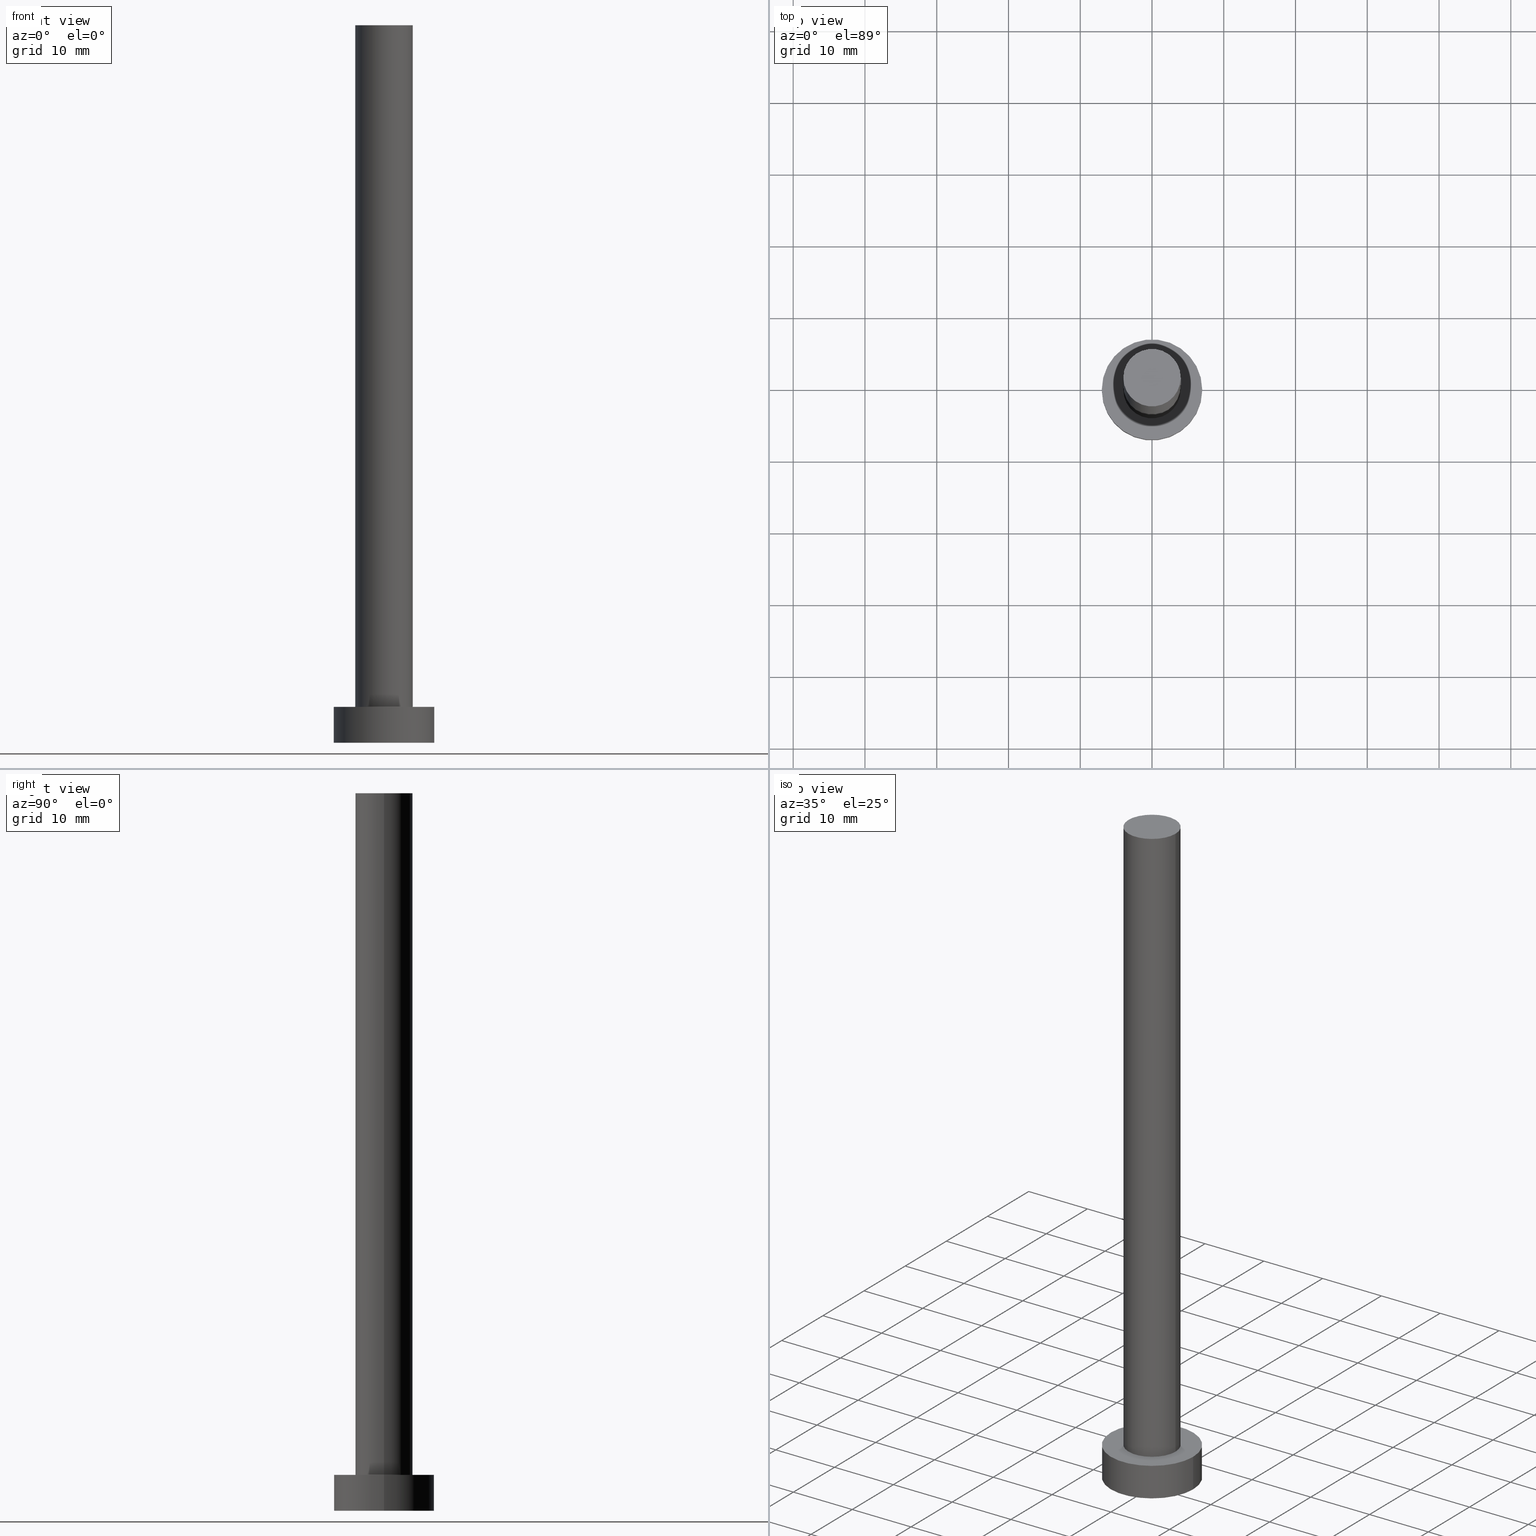
[diagram: canonical four-view strip — front | top / right | iso, engineering-drawing reading convention]
A machine part, canonical four-view strip (front | top / right | iso — engineering-drawing reading convention). The complete STEP part file that produces these views, byte-faithful:
ISO-10303-21;
HEADER;
FILE_DESCRIPTION (( 'STEP AP203' ),
    '1' );
FILE_NAME ('0e49.STEP',
    '2023-02-12T11:20:41',
    ( '' ),
    ( '' ),
    'SwSTEP 2.0',
    'SolidWorks 2019',
    '' );
FILE_SCHEMA (( 'CONFIG_CONTROL_DESIGN' ));
ENDSEC;

DATA;
#1 = PERSON_AND_ORGANIZATION_ROLE ( 'design_supplier' ) ;
#2 = FACE_OUTER_BOUND ( 'NONE', #112, .T. ) ;
#3 = CARTESIAN_POINT ( 'NONE',  ( 0.000000000000000000, 0.000000000000000000, 5.000000000000000000 ) ) ;
#4 = PERSON_AND_ORGANIZATION ( #158, #207 ) ;
#5 = APPLICATION_CONTEXT ( 'configuration controlled 3d designs of mechanical parts and assemblies' ) ;
#6 = APPROVAL_PERSON_ORGANIZATION ( #241, #59, #16 ) ;
#7 =( LENGTH_UNIT ( ) NAMED_UNIT ( * ) SI_UNIT ( .MILLI., .METRE. ) );
#8 = AXIS2_PLACEMENT_3D ( 'NONE', #123, #102, #120 ) ;
#9 = CC_DESIGN_PERSON_AND_ORGANIZATION_ASSIGNMENT ( #182, #1, ( #113 ) ) ;
#10 = DATE_AND_TIME ( #194, #188 ) ;
#11 = EDGE_CURVE ( 'NONE', #52, #242, #56, .T. ) ;
#12 = CC_DESIGN_DATE_AND_TIME_ASSIGNMENT ( #72, #86, ( #32 ) ) ;
#13 = ORIENTED_EDGE ( 'NONE', *, *, #103, .T. ) ;
#14 = AXIS2_PLACEMENT_3D ( 'NONE', #203, #159, #216 ) ;
#15 = DIRECTION ( 'NONE',  ( -0.000000000000000000, -0.000000000000000000, -1.000000000000000000 ) ) ;
#16 = APPROVAL_ROLE ( '' ) ;
#17 = DIRECTION ( 'NONE',  ( -0.000000000000000000, -0.000000000000000000, -1.000000000000000000 ) ) ;
#18 = CC_DESIGN_PERSON_AND_ORGANIZATION_ASSIGNMENT ( #4, #218, ( #23 ) ) ;
#19 = CALENDAR_DATE ( 2023, 12, 2 ) ;
#20 = CARTESIAN_POINT ( 'NONE',  ( 0.000000000000000000, 0.000000000000000000, 5.000000000000000000 ) ) ;
#21 = DIRECTION ( 'NONE',  ( -0.000000000000000000, -0.000000000000000000, -1.000000000000000000 ) ) ;
#22 = APPROVAL_STATUS ( 'not_yet_approved' ) ;
#23 = PRODUCT_DEFINITION ( 'NEZN�M�', '', #113, #36 ) ;
#24 = CIRCLE ( 'NONE', #251, 7.000000000000000000 ) ;
#25 = CARTESIAN_POINT ( 'NONE',  ( 0.000000000000000000, 0.000000000000000000, 0.000000000000000000 ) ) ;
#26 = FACE_OUTER_BOUND ( 'NONE', #98, .T. ) ;
#27 = VECTOR ( 'NONE', #118, 1000.000000000000000 ) ;
#28 = DIRECTION ( 'NONE',  ( 1.000000000000000000, 0.000000000000000000, 0.000000000000000000 ) ) ;
#29 = ORIENTED_EDGE ( 'NONE', *, *, #30, .T. ) ;
#30 = EDGE_CURVE ( 'NONE', #242, #76, #166, .T. ) ;
#31 = ORIENTED_EDGE ( 'NONE', *, *, #244, .T. ) ;
#32 = SECURITY_CLASSIFICATION ( '', '', #156 ) ;
#33 = ORIENTED_EDGE ( 'NONE', *, *, #11, .F. ) ;
#34 = CC_DESIGN_PERSON_AND_ORGANIZATION_ASSIGNMENT ( #60, #104, ( #113 ) ) ;
#35 = ORIENTED_EDGE ( 'NONE', *, *, #161, .F. ) ;
#36 = DESIGN_CONTEXT ( 'detailed design', #5, 'design' ) ;
#37 = LOCAL_TIME ( 12, 20, 41.00000000000000000, #222 ) ;
#38 = DIRECTION ( 'NONE',  ( 0.000000000000000000, 0.000000000000000000, 1.000000000000000000 ) ) ;
#39 = CALENDAR_DATE ( 2023, 12, 2 ) ;
#40 = CARTESIAN_POINT ( 'NONE',  ( 0.000000000000000000, 0.000000000000000000, 100.0000000000000000 ) ) ;
#41 = EDGE_CURVE ( 'NONE', #173, #76, #255, .T. ) ;
#42 = APPLICATION_PROTOCOL_DEFINITION ( 'international standard', 'config_control_design', 1994, #233 ) ;
#43 = AXIS2_PLACEMENT_3D ( 'NONE', #68, #225, #47 ) ;
#44 = AXIS2_PLACEMENT_3D ( 'NONE', #3, #67, #140 ) ;
#45 = MECHANICAL_CONTEXT ( 'NONE', #233, 'mechanical' ) ;
#46 = CARTESIAN_POINT ( 'NONE',  ( 4.000000000000000000, 4.898587196589412829E-16, 5.000000000000000000 ) ) ;
#47 = DIRECTION ( 'NONE',  ( 1.000000000000000000, 0.000000000000000000, 0.000000000000000000 ) ) ;
#48 =( NAMED_UNIT ( * ) SI_UNIT ( $, .STERADIAN. ) SOLID_ANGLE_UNIT ( ) );
#49 = CALENDAR_DATE ( 2023, 12, 2 ) ;
#50 = DIRECTION ( 'NONE',  ( 1.000000000000000000, 0.000000000000000000, -0.000000000000000000 ) ) ;
#51 = ORIENTED_EDGE ( 'NONE', *, *, #84, .T. ) ;
#52 = VERTEX_POINT ( 'NONE', #141 ) ;
#53 = EDGE_CURVE ( 'NONE', #232, #150, #186, .T. ) ;
#54 = ORIENTED_EDGE ( 'NONE', *, *, #84, .F. ) ;
#55 = DIRECTION ( 'NONE',  ( -1.000000000000000000, 0.000000000000000000, 0.000000000000000000 ) ) ;
#56 = LINE ( 'NONE', #237, #27 ) ;
#57 = CLOSED_SHELL ( 'NONE', ( #171, #127, #65, #108, #215, #191, #131 ) ) ;
#58 = CYLINDRICAL_SURFACE ( 'NONE', #167, 4.000000000000000000 ) ;
#59 = APPROVAL ( #69, 'NEUR�EN�' ) ;
#60 = PERSON_AND_ORGANIZATION ( #158, #207 ) ;
#61 = CARTESIAN_POINT ( 'NONE',  ( 0.000000000000000000, 0.000000000000000000, 5.000000000000000000 ) ) ;
#62 = PERSON_AND_ORGANIZATION_ROLE ( 'classification_officer' ) ;
#63 = DIRECTION ( 'NONE',  ( 1.000000000000000000, 0.000000000000000000, -0.000000000000000000 ) ) ;
#64 = CARTESIAN_POINT ( 'NONE',  ( -7.000000000000000000, 0.000000000000000000, 5.000000000000000000 ) ) ;
#65 = ADVANCED_FACE ( 'NONE', ( #125 ), #122, .T. ) ;
#66 = PERSON_AND_ORGANIZATION ( #158, #207 ) ;
#67 = DIRECTION ( 'NONE',  ( 0.000000000000000000, 0.000000000000000000, 1.000000000000000000 ) ) ;
#68 = CARTESIAN_POINT ( 'NONE',  ( 0.000000000000000000, 0.000000000000000000, 100.0000000000000000 ) ) ;
#69 = APPROVAL_STATUS ( 'not_yet_approved' ) ;
#70 = DIRECTION ( 'NONE',  ( 0.000000000000000000, 0.000000000000000000, 1.000000000000000000 ) ) ;
#71 = AXIS2_PLACEMENT_3D ( 'NONE', #147, #70, #50 ) ;
#72 = DATE_AND_TIME ( #49, #37 ) ;
#73 = ORIENTED_EDGE ( 'NONE', *, *, #161, .T. ) ;
#74 = EDGE_CURVE ( 'NONE', #232, #213, #199, .T. ) ;
#75 = EDGE_LOOP ( 'NONE', ( #51, #172 ) ) ;
#76 = VERTEX_POINT ( 'NONE', #110 ) ;
#77 = EDGE_LOOP ( 'NONE', ( #152, #54, #73, #198 ) ) ;
#78 = AXIS2_PLACEMENT_3D ( 'NONE', #20, #106, #184 ) ;
#79 = ORIENTED_EDGE ( 'NONE', *, *, #41, .F. ) ;
#80 = FACE_OUTER_BOUND ( 'NONE', #149, .T. ) ;
#81 = CIRCLE ( 'NONE', #249, 7.000000000000000000 ) ;
#82 = APPROVAL_DATE_TIME ( #254, #59 ) ;
#83 = CYLINDRICAL_SURFACE ( 'NONE', #93, 7.000000000000000000 ) ;
#84 = EDGE_CURVE ( 'NONE', #213, #232, #230, .T. ) ;
#85 = ORIENTED_EDGE ( 'NONE', *, *, #151, .F. ) ;
#86 = DATE_TIME_ROLE ( 'classification_date' ) ;
#87 = PLANE ( 'NONE',  #71 ) ;
#88 = AXIS2_PLACEMENT_3D ( 'NONE', #153, #97, #55 ) ;
#89 = DIRECTION ( 'NONE',  ( 1.000000000000000000, 0.000000000000000000, 0.000000000000000000 ) ) ;
#90 = APPROVAL_DATE_TIME ( #10, #229 ) ;
#91 = EDGE_LOOP ( 'NONE', ( #211, #250, #13, #35 ) ) ;
#92 = PRODUCT ( '0e49', '0e49', '', ( #45 ) ) ;
#93 = AXIS2_PLACEMENT_3D ( 'NONE', #179, #185, #137 ) ;
#94 = CC_DESIGN_APPROVAL ( #155, ( #23 ) ) ;
#95 = ORIENTED_EDGE ( 'NONE', *, *, #103, .F. ) ;
#96 = EDGE_CURVE ( 'NONE', #115, #150, #221, .T. ) ;
#97 = DIRECTION ( 'NONE',  ( -0.000000000000000000, -0.000000000000000000, -1.000000000000000000 ) ) ;
#98 = EDGE_LOOP ( 'NONE', ( #212, #132 ) ) ;
#99 = PLANE ( 'NONE',  #134 ) ;
#100 = APPROVAL_ROLE ( '' ) ;
#101 = DIRECTION ( 'NONE',  ( 1.000000000000000000, 0.000000000000000000, 0.000000000000000000 ) ) ;
#102 = DIRECTION ( 'NONE',  ( 0.000000000000000000, 0.000000000000000000, 1.000000000000000000 ) ) ;
#103 = EDGE_CURVE ( 'NONE', #150, #115, #117, .T. ) ;
#104 = PERSON_AND_ORGANIZATION_ROLE ( 'creator' ) ;
#105 = DIRECTION ( 'NONE',  ( 0.000000000000000000, 0.000000000000000000, 1.000000000000000000 ) ) ;
#106 = DIRECTION ( 'NONE',  ( -0.000000000000000000, -0.000000000000000000, -1.000000000000000000 ) ) ;
#107 = DIRECTION ( 'NONE',  ( 0.000000000000000000, 0.000000000000000000, 1.000000000000000000 ) ) ;
#108 = ADVANCED_FACE ( 'NONE', ( #175, #80 ), #99, .T. ) ;
#109 = PERSON_AND_ORGANIZATION ( #158, #207 ) ;
#110 = CARTESIAN_POINT ( 'NONE',  ( -7.000000000000000000, 0.000000000000000000, 0.000000000000000000 ) ) ;
#111 = COORDINATED_UNIVERSAL_TIME_OFFSET ( 1, 0, .AHEAD. ) ;
#112 = EDGE_LOOP ( 'NONE', ( #85, #231, #29, #79 ) ) ;
#113 = PRODUCT_DEFINITION_FORMATION_WITH_SPECIFIED_SOURCE ( 'LIBOVOLN�', '', #92, .NOT_KNOWN. ) ;
#114 = AXIS2_PLACEMENT_3D ( 'NONE', #210, #243, #89 ) ;
#115 = VERTEX_POINT ( 'NONE', #217 ) ;
#116 = ORIENTED_EDGE ( 'NONE', *, *, #129, .F. ) ;
#117 = CIRCLE ( 'NONE', #248, 4.000000000000000000 ) ;
#118 = DIRECTION ( 'NONE',  ( -0.000000000000000000, -0.000000000000000000, -1.000000000000000000 ) ) ;
#119 = PLANE ( 'NONE',  #245 ) ;
#120 = DIRECTION ( 'NONE',  ( 1.000000000000000000, 0.000000000000000000, 0.000000000000000000 ) ) ;
#121 = DATE_TIME_ROLE ( 'creation_date' ) ;
#122 = CYLINDRICAL_SURFACE ( 'NONE', #78, 7.000000000000000000 ) ;
#123 = CARTESIAN_POINT ( 'NONE',  ( 0.000000000000000000, 0.000000000000000000, 0.000000000000000000 ) ) ;
#124 = CARTESIAN_POINT ( 'NONE',  ( -4.000000000000000000, 0.000000000000000000, 100.0000000000000000 ) ) ;
#125 = FACE_OUTER_BOUND ( 'NONE', #197, .T. ) ;
#126 = APPLICATION_PROTOCOL_DEFINITION ( 'international standard', 'config_control_design', 1994, #5 ) ;
#127 = ADVANCED_FACE ( 'NONE', ( #2 ), #83, .T. ) ;
#128 = ORIENTED_EDGE ( 'NONE', *, *, #96, .F. ) ;
#129 = EDGE_CURVE ( 'NONE', #173, #52, #81, .T. ) ;
#130 = VECTOR ( 'NONE', #15, 1000.000000000000000 ) ;
#131 = ADVANCED_FACE ( 'NONE', ( #252 ), #119, .T. ) ;
#132 = ORIENTED_EDGE ( 'NONE', *, *, #30, .F. ) ;
#133 = CARTESIAN_POINT ( 'NONE',  ( -7.000000000000000000, 0.000000000000000000, 5.000000000000000000 ) ) ;
#134 = AXIS2_PLACEMENT_3D ( 'NONE', #61, #38, #183 ) ;
#135 = MANIFOLD_SOLID_BREP ( 'P�idat vysunut�m3', #57 ) ;
#136 = APPROVAL_DATE_TIME ( #154, #155 ) ;
#137 = DIRECTION ( 'NONE',  ( -1.000000000000000000, 0.000000000000000000, 0.000000000000000000 ) ) ;
#138 = CC_DESIGN_APPROVAL ( #59, ( #113 ) ) ;
#139 = COORDINATED_UNIVERSAL_TIME_OFFSET ( 1, 0, .AHEAD. ) ;
#140 = DIRECTION ( 'NONE',  ( 1.000000000000000000, 0.000000000000000000, 0.000000000000000000 ) ) ;
#141 = CARTESIAN_POINT ( 'NONE',  ( 7.000000000000000000, 8.572527594031473190E-16, 5.000000000000000000 ) ) ;
#142 = COORDINATED_UNIVERSAL_TIME_OFFSET ( 1, 0, .AHEAD. ) ;
#143 = DIRECTION ( 'NONE',  ( 0.000000000000000000, 0.000000000000000000, 1.000000000000000000 ) ) ;
#144 = LOCAL_TIME ( 12, 20, 41.00000000000000000, #177 ) ;
#145 = APPROVAL_STATUS ( 'not_yet_approved' ) ;
#146 = ORIENTED_EDGE ( 'NONE', *, *, #41, .T. ) ;
#147 = CARTESIAN_POINT ( 'NONE',  ( 0.000000000000000000, 0.000000000000000000, 0.000000000000000000 ) ) ;
#148 = LOCAL_TIME ( 12, 20, 41.00000000000000000, #139 ) ;
#149 = EDGE_LOOP ( 'NONE', ( #228, #195 ) ) ;
#150 = VERTEX_POINT ( 'NONE', #46 ) ;
#151 = EDGE_CURVE ( 'NONE', #52, #173, #200, .T. ) ;
#152 = ORIENTED_EDGE ( 'NONE', *, *, #53, .F. ) ;
#153 = CARTESIAN_POINT ( 'NONE',  ( 0.000000000000000000, 0.000000000000000000, 100.0000000000000000 ) ) ;
#154 = DATE_AND_TIME ( #19, #148 ) ;
#155 = APPROVAL ( #22, 'NEUR�EN�' ) ;
#156 = SECURITY_CLASSIFICATION_LEVEL ( 'unclassified' ) ;
#157 = DIRECTION ( 'NONE',  ( 1.000000000000000000, 0.000000000000000000, 0.000000000000000000 ) ) ;
#158 = PERSON ( 'NEUR�EN�', 'NEUR�EN�', 'NEUR�EN�', ('NEUR�EN�'), ('NEUR�EN�'), ('NEUR�EN�') ) ;
#159 = DIRECTION ( 'NONE',  ( 0.000000000000000000, 0.000000000000000000, 1.000000000000000000 ) ) ;
#160 = CARTESIAN_POINT ( 'NONE',  ( 4.000000000000000000, 4.898587196589412829E-16, 100.0000000000000000 ) ) ;
#161 = EDGE_CURVE ( 'NONE', #213, #115, #235, .T. ) ;
#162 = LOCAL_TIME ( 12, 20, 41.00000000000000000, #142 ) ;
#163 = PERSON_AND_ORGANIZATION ( #158, #207 ) ;
#164 = DIRECTION ( 'NONE',  ( -1.000000000000000000, 0.000000000000000000, 0.000000000000000000 ) ) ;
#165 = APPROVAL_ROLE ( '' ) ;
#166 = CIRCLE ( 'NONE', #8, 7.000000000000000000 ) ;
#167 = AXIS2_PLACEMENT_3D ( 'NONE', #40, #190, #164 ) ;
#168 = CARTESIAN_POINT ( 'NONE',  ( 7.000000000000000000, 8.572527594031473190E-16, 0.000000000000000000 ) ) ;
#169 = SHAPE_DEFINITION_REPRESENTATION ( #205, #174 ) ;
#170 =( GEOMETRIC_REPRESENTATION_CONTEXT ( 3 ) GLOBAL_UNCERTAINTY_ASSIGNED_CONTEXT ( ( #226 ) ) GLOBAL_UNIT_ASSIGNED_CONTEXT ( ( #7, #193, #48 ) ) REPRESENTATION_CONTEXT ( 'NONE', 'WORKASPACE' ) );
#171 = ADVANCED_FACE ( 'NONE', ( #201 ), #236, .T. ) ;
#172 = ORIENTED_EDGE ( 'NONE', *, *, #74, .T. ) ;
#173 = VERTEX_POINT ( 'NONE', #133 ) ;
#174 = ADVANCED_BREP_SHAPE_REPRESENTATION ( '0e49', ( #135, #14 ), #170 ) ;
#175 = FACE_BOUND ( 'NONE', #176, .T. ) ;
#176 = EDGE_LOOP ( 'NONE', ( #128, #95 ) ) ;
#177 = COORDINATED_UNIVERSAL_TIME_OFFSET ( 1, 0, .AHEAD. ) ;
#178 = CC_DESIGN_PERSON_AND_ORGANIZATION_ASSIGNMENT ( #66, #187, ( #92 ) ) ;
#179 = CARTESIAN_POINT ( 'NONE',  ( 0.000000000000000000, 0.000000000000000000, 5.000000000000000000 ) ) ;
#180 = APPROVAL_PERSON_ORGANIZATION ( #109, #229, #165 ) ;
#181 = CC_DESIGN_APPROVAL ( #229, ( #32 ) ) ;
#182 = PERSON_AND_ORGANIZATION ( #158, #207 ) ;
#183 = DIRECTION ( 'NONE',  ( 1.000000000000000000, 0.000000000000000000, -0.000000000000000000 ) ) ;
#184 = DIRECTION ( 'NONE',  ( -1.000000000000000000, 0.000000000000000000, 0.000000000000000000 ) ) ;
#185 = DIRECTION ( 'NONE',  ( -0.000000000000000000, -0.000000000000000000, -1.000000000000000000 ) ) ;
#186 = LINE ( 'NONE', #160, #253 ) ;
#187 = PERSON_AND_ORGANIZATION_ROLE ( 'design_owner' ) ;
#188 = LOCAL_TIME ( 12, 20, 41.00000000000000000, #111 ) ;
#189 = CARTESIAN_POINT ( 'NONE',  ( 0.000000000000000000, 0.000000000000000000, 5.000000000000000000 ) ) ;
#190 = DIRECTION ( 'NONE',  ( -0.000000000000000000, -0.000000000000000000, -1.000000000000000000 ) ) ;
#191 = ADVANCED_FACE ( 'NONE', ( #214 ), #58, .T. ) ;
#192 = VECTOR ( 'NONE', #21, 1000.000000000000000 ) ;
#193 =( NAMED_UNIT ( * ) PLANE_ANGLE_UNIT ( ) SI_UNIT ( $, .RADIAN. ) );
#194 = CALENDAR_DATE ( 2023, 12, 2 ) ;
#195 = ORIENTED_EDGE ( 'NONE', *, *, #151, .T. ) ;
#196 = AXIS2_PLACEMENT_3D ( 'NONE', #189, #143, #223 ) ;
#197 = EDGE_LOOP ( 'NONE', ( #33, #116, #146, #31 ) ) ;
#198 = ORIENTED_EDGE ( 'NONE', *, *, #96, .T. ) ;
#199 = CIRCLE ( 'NONE', #43, 4.000000000000000000 ) ;
#200 = CIRCLE ( 'NONE', #44, 7.000000000000000000 ) ;
#201 = FACE_OUTER_BOUND ( 'NONE', #91, .T. ) ;
#202 = DATE_AND_TIME ( #39, #144 ) ;
#203 = CARTESIAN_POINT ( 'NONE',  ( 0.000000000000000000, 0.000000000000000000, 0.000000000000000000 ) ) ;
#204 = DIRECTION ( 'NONE',  ( 0.000000000000000000, 0.000000000000000000, 1.000000000000000000 ) ) ;
#205 = PRODUCT_DEFINITION_SHAPE ( 'NONE', 'NONE',  #23 ) ;
#206 = CARTESIAN_POINT ( 'NONE',  ( 4.000000000000000000, 4.898587196589412829E-16, 100.0000000000000000 ) ) ;
#207 = ORGANIZATION ( 'NEUR�EN�', 'NEUR�EN�', '' ) ;
#208 = CARTESIAN_POINT ( 'NONE',  ( -4.000000000000000000, 0.000000000000000000, 100.0000000000000000 ) ) ;
#209 = DIRECTION ( 'NONE',  ( 0.000000000000000000, 0.000000000000000000, 1.000000000000000000 ) ) ;
#210 = CARTESIAN_POINT ( 'NONE',  ( 0.000000000000000000, 0.000000000000000000, 100.0000000000000000 ) ) ;
#211 = ORIENTED_EDGE ( 'NONE', *, *, #74, .F. ) ;
#212 = ORIENTED_EDGE ( 'NONE', *, *, #244, .F. ) ;
#213 = VERTEX_POINT ( 'NONE', #208 ) ;
#214 = FACE_OUTER_BOUND ( 'NONE', #77, .T. ) ;
#215 = ADVANCED_FACE ( 'NONE', ( #26 ), #87, .F. ) ;
#216 = DIRECTION ( 'NONE',  ( 1.000000000000000000, 0.000000000000000000, 0.000000000000000000 ) ) ;
#217 = CARTESIAN_POINT ( 'NONE',  ( -4.000000000000000000, 0.000000000000000000, 5.000000000000000000 ) ) ;
#218 = PERSON_AND_ORGANIZATION_ROLE ( 'creator' ) ;
#219 = CARTESIAN_POINT ( 'NONE',  ( 0.000000000000000000, 0.000000000000000000, 5.000000000000000000 ) ) ;
#220 = PRODUCT_RELATED_PRODUCT_CATEGORY ( 'detail', '', ( #92 ) ) ;
#221 = CIRCLE ( 'NONE', #196, 4.000000000000000000 ) ;
#222 = COORDINATED_UNIVERSAL_TIME_OFFSET ( 1, 0, .AHEAD. ) ;
#223 = DIRECTION ( 'NONE',  ( 1.000000000000000000, 0.000000000000000000, 0.000000000000000000 ) ) ;
#224 = APPROVAL_PERSON_ORGANIZATION ( #163, #155, #100 ) ;
#225 = DIRECTION ( 'NONE',  ( 0.000000000000000000, 0.000000000000000000, 1.000000000000000000 ) ) ;
#226 = UNCERTAINTY_MEASURE_WITH_UNIT (LENGTH_MEASURE( 1.000000000000000082E-05 ), #7, 'distance_accuracy_value', 'NONE');
#227 = CALENDAR_DATE ( 2023, 12, 2 ) ;
#228 = ORIENTED_EDGE ( 'NONE', *, *, #129, .T. ) ;
#229 = APPROVAL ( #145, 'NEUR�EN�' ) ;
#230 = CIRCLE ( 'NONE', #114, 4.000000000000000000 ) ;
#231 = ORIENTED_EDGE ( 'NONE', *, *, #11, .T. ) ;
#232 = VERTEX_POINT ( 'NONE', #206 ) ;
#233 = APPLICATION_CONTEXT ( 'configuration controlled 3d designs of mechanical parts and assemblies' ) ;
#234 = CC_DESIGN_DATE_AND_TIME_ASSIGNMENT ( #202, #121, ( #23 ) ) ;
#235 = LINE ( 'NONE', #124, #130 ) ;
#236 = CYLINDRICAL_SURFACE ( 'NONE', #88, 4.000000000000000000 ) ;
#237 = CARTESIAN_POINT ( 'NONE',  ( 7.000000000000000000, 8.572527594031473190E-16, 5.000000000000000000 ) ) ;
#238 = PERSON_AND_ORGANIZATION ( #158, #207 ) ;
#239 = CARTESIAN_POINT ( 'NONE',  ( 0.000000000000000000, 0.000000000000000000, 100.0000000000000000 ) ) ;
#240 = CARTESIAN_POINT ( 'NONE',  ( 0.000000000000000000, 0.000000000000000000, 5.000000000000000000 ) ) ;
#241 = PERSON_AND_ORGANIZATION ( #158, #207 ) ;
#242 = VERTEX_POINT ( 'NONE', #168 ) ;
#243 = DIRECTION ( 'NONE',  ( 0.000000000000000000, 0.000000000000000000, 1.000000000000000000 ) ) ;
#244 = EDGE_CURVE ( 'NONE', #76, #242, #24, .T. ) ;
#245 = AXIS2_PLACEMENT_3D ( 'NONE', #239, #107, #63 ) ;
#246 = CC_DESIGN_SECURITY_CLASSIFICATION ( #32, ( #113 ) ) ;
#247 = CC_DESIGN_PERSON_AND_ORGANIZATION_ASSIGNMENT ( #238, #62, ( #32 ) ) ;
#248 = AXIS2_PLACEMENT_3D ( 'NONE', #240, #105, #101 ) ;
#249 = AXIS2_PLACEMENT_3D ( 'NONE', #219, #204, #157 ) ;
#250 = ORIENTED_EDGE ( 'NONE', *, *, #53, .T. ) ;
#251 = AXIS2_PLACEMENT_3D ( 'NONE', #25, #209, #28 ) ;
#252 = FACE_OUTER_BOUND ( 'NONE', #75, .T. ) ;
#253 = VECTOR ( 'NONE', #17, 1000.000000000000000 ) ;
#254 = DATE_AND_TIME ( #227, #162 ) ;
#255 = LINE ( 'NONE', #64, #192 ) ;
ENDSEC;
END-ISO-10303-21;
